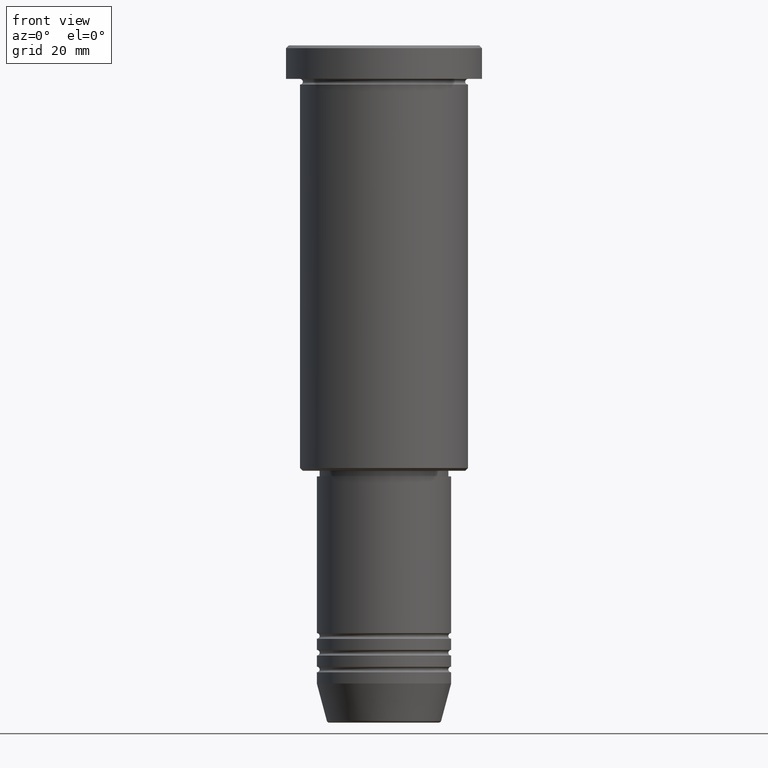
[diagram: clean part render]
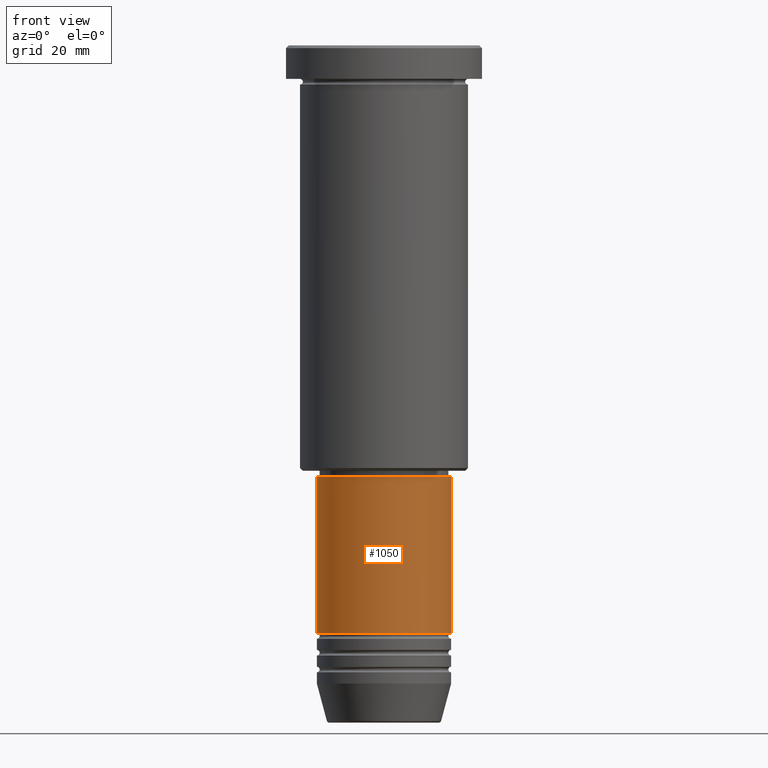
[diagram: same view with one face highlighted and labeled with its STEP entity id]
A machine part, front view. The second image highlights one B-rep face of the part: STEP entity #1050.
In plain terms, the highlighted cylindrical surface (partial cylindrical patch) has radius 12 mm, axis along (-0, -0, 1).
Its self-contained STEP definition (entity closure, byte-faithful):
#7 = CYLINDRICAL_SURFACE ( 'NONE', #356, 12.00000000000000000 ) ;
#25 = ORIENTED_EDGE ( 'NONE', *, *, #776, .F. ) ;
#103 = AXIS2_PLACEMENT_3D ( 'NONE', #640, #721, #1047 ) ;
#108 = EDGE_LOOP ( 'NONE', ( #508, #881, #635, #25 ) ) ;
#122 = CIRCLE ( 'NONE', #1151, 12.00000000000000000 ) ;
#147 = LINE ( 'NONE', #292, #258 ) ;
#215 = CARTESIAN_POINT ( 'NONE',  ( 12.00000000000000000, 0.000000000000000000, -104.9999999999999574 ) ) ;
#258 = VECTOR ( 'NONE', #438, 1000.000000000000000 ) ;
#292 = CARTESIAN_POINT ( 'NONE',  ( 12.00000000000000000, 0.000000000000000000, 0.000000000000000000 ) ) ;
#321 = DIRECTION ( 'NONE',  ( -0.000000000000000000, -0.000000000000000000, 1.000000000000000000 ) ) ;
#356 = AXIS2_PLACEMENT_3D ( 'NONE', #550, #979, #1079 ) ;
#372 = VERTEX_POINT ( 'NONE', #704 ) ;
#396 = VERTEX_POINT ( 'NONE', #719 ) ;
#438 = DIRECTION ( 'NONE',  ( -0.000000000000000000, -0.000000000000000000, 1.000000000000000000 ) ) ;
#476 = CIRCLE ( 'NONE', #103, 12.00000000000000000 ) ;
#508 = ORIENTED_EDGE ( 'NONE', *, *, #928, .F. ) ;
#550 = CARTESIAN_POINT ( 'NONE',  ( 0.000000000000000000, 0.000000000000000000, 0.000000000000000000 ) ) ;
#557 = VERTEX_POINT ( 'NONE', #215 ) ;
#635 = ORIENTED_EDGE ( 'NONE', *, *, #814, .T. ) ;
#640 = CARTESIAN_POINT ( 'NONE',  ( 0.000000000000000000, 0.000000000000000000, -104.9999999999999574 ) ) ;
#681 = CARTESIAN_POINT ( 'NONE',  ( -12.00000000000000000, 1.469576158976823947E-15, 0.000000000000000000 ) ) ;
#704 = CARTESIAN_POINT ( 'NONE',  ( -12.00000000000000000, 1.469576158976823947E-15, -76.99999999999998579 ) ) ;
#719 = CARTESIAN_POINT ( 'NONE',  ( 12.00000000000000000, 0.000000000000000000, -76.99999999999998579 ) ) ;
#721 = DIRECTION ( 'NONE',  ( -0.000000000000000000, -0.000000000000000000, 1.000000000000000000 ) ) ;
#751 = VECTOR ( 'NONE', #321, 1000.000000000000000 ) ;
#754 = EDGE_CURVE ( 'NONE', #844, #557, #476, .T. ) ;
#776 = EDGE_CURVE ( 'NONE', #372, #396, #122, .T. ) ;
#778 = CARTESIAN_POINT ( 'NONE',  ( -12.00000000000000000, 1.469576158976823947E-15, -104.9999999999999574 ) ) ;
#814 = EDGE_CURVE ( 'NONE', #557, #396, #147, .T. ) ;
#844 = VERTEX_POINT ( 'NONE', #778 ) ;
#881 = ORIENTED_EDGE ( 'NONE', *, *, #754, .T. ) ;
#928 = EDGE_CURVE ( 'NONE', #844, #372, #1043, .T. ) ;
#979 = DIRECTION ( 'NONE',  ( -0.000000000000000000, -0.000000000000000000, 1.000000000000000000 ) ) ;
#998 = CARTESIAN_POINT ( 'NONE',  ( 0.000000000000000000, 0.000000000000000000, -76.99999999999998579 ) ) ;
#1000 = DIRECTION ( 'NONE',  ( -0.000000000000000000, -0.000000000000000000, 1.000000000000000000 ) ) ;
#1040 = DIRECTION ( 'NONE',  ( 1.000000000000000000, 0.000000000000000000, 0.000000000000000000 ) ) ;
#1043 = LINE ( 'NONE', #681, #751 ) ;
#1047 = DIRECTION ( 'NONE',  ( 1.000000000000000000, 0.000000000000000000, 0.000000000000000000 ) ) ;
#1050 = ADVANCED_FACE ( 'NONE', ( #1073 ), #7, .T. ) ;
#1073 = FACE_OUTER_BOUND ( 'NONE', #108, .T. ) ;
#1079 = DIRECTION ( 'NONE',  ( 1.000000000000000000, 0.000000000000000000, 0.000000000000000000 ) ) ;
#1151 = AXIS2_PLACEMENT_3D ( 'NONE', #998, #1000, #1040 ) ;